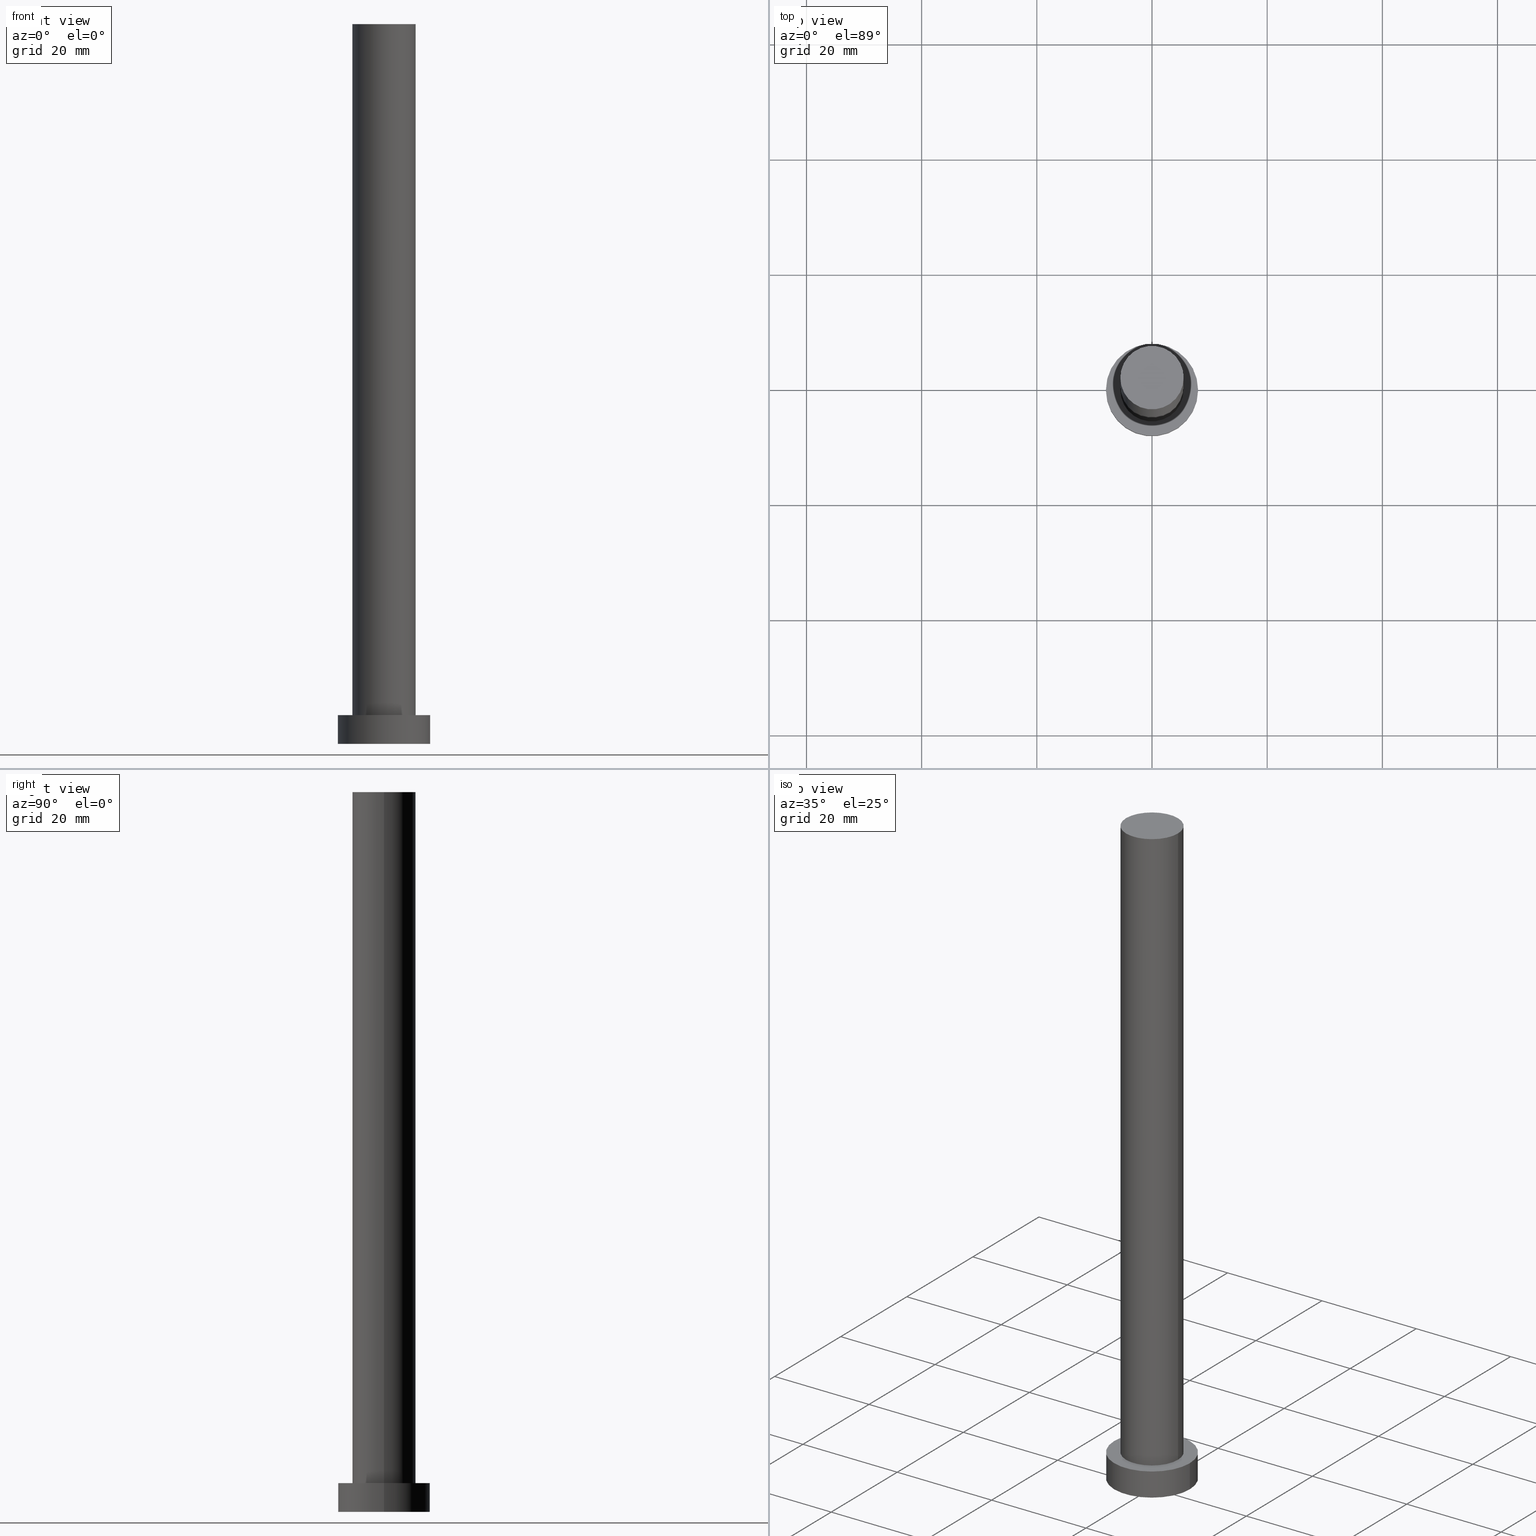
[diagram: canonical four-view strip — front | top / right | iso, engineering-drawing reading convention]
A machine part, canonical four-view strip (front | top / right | iso — engineering-drawing reading convention). The complete STEP part file that produces these views, byte-faithful:
ISO-10303-21;
HEADER;
FILE_DESCRIPTION (( 'STEP AP203' ),
    '1' );
FILE_NAME ('380d.STEP',
    '2023-02-12T10:57:51',
    ( '' ),
    ( '' ),
    'SwSTEP 2.0',
    'SolidWorks 2019',
    '' );
FILE_SCHEMA (( 'CONFIG_CONTROL_DESIGN' ));
ENDSEC;

DATA;
#1 = FACE_OUTER_BOUND ( 'NONE', #210, .T. ) ;
#2 = VECTOR ( 'NONE', #22, 1000.000000000000000 ) ;
#3 = APPROVAL_ROLE ( '' ) ;
#4 = EDGE_CURVE ( 'NONE', #249, #124, #133, .T. ) ;
#5 = ORIENTED_EDGE ( 'NONE', *, *, #173, .F. ) ;
#6 = FACE_OUTER_BOUND ( 'NONE', #243, .T. ) ;
#7 = EDGE_LOOP ( 'NONE', ( #220, #94 ) ) ;
#8 = PERSON_AND_ORGANIZATION_ROLE ( 'creator' ) ;
#9 = DIRECTION ( 'NONE',  ( 0.000000000000000000, 0.000000000000000000, 1.000000000000000000 ) ) ;
#10 = PERSON_AND_ORGANIZATION_ROLE ( 'design_supplier' ) ;
#11 = PRODUCT_RELATED_PRODUCT_CATEGORY ( 'detail', '', ( #241 ) ) ;
#12 = AXIS2_PLACEMENT_3D ( 'NONE', #216, #154, #39 ) ;
#13 = FACE_OUTER_BOUND ( 'NONE', #81, .T. ) ;
#14 = DIRECTION ( 'NONE',  ( -0.000000000000000000, -0.000000000000000000, -1.000000000000000000 ) ) ;
#15 = ORIENTED_EDGE ( 'NONE', *, *, #199, .F. ) ;
#16 = DATE_AND_TIME ( #33, #117 ) ;
#17 = DIRECTION ( 'NONE',  ( 0.000000000000000000, 0.000000000000000000, 1.000000000000000000 ) ) ;
#18 = CARTESIAN_POINT ( 'NONE',  ( 0.000000000000000000, 0.000000000000000000, 5.000000000000000000 ) ) ;
#19 = ORIENTED_EDGE ( 'NONE', *, *, #96, .F. ) ;
#20 =( NAMED_UNIT ( * ) PLANE_ANGLE_UNIT ( ) SI_UNIT ( $, .RADIAN. ) );
#21 =( GEOMETRIC_REPRESENTATION_CONTEXT ( 3 ) GLOBAL_UNCERTAINTY_ASSIGNED_CONTEXT ( ( #160 ) ) GLOBAL_UNIT_ASSIGNED_CONTEXT ( ( #89, #20, #179 ) ) REPRESENTATION_CONTEXT ( 'NONE', 'WORKASPACE' ) );
#22 = DIRECTION ( 'NONE',  ( -0.000000000000000000, -0.000000000000000000, -1.000000000000000000 ) ) ;
#23 = ORIENTED_EDGE ( 'NONE', *, *, #213, .F. ) ;
#24 = ORIENTED_EDGE ( 'NONE', *, *, #193, .F. ) ;
#25 = ADVANCED_FACE ( 'NONE', ( #51 ), #69, .T. ) ;
#26 = DIRECTION ( 'NONE',  ( 1.000000000000000000, 0.000000000000000000, 0.000000000000000000 ) ) ;
#27 = CIRCLE ( 'NONE', #231, 5.500000000000000000 ) ;
#28 = ADVANCED_FACE ( 'NONE', ( #13 ), #62, .T. ) ;
#29 = CARTESIAN_POINT ( 'NONE',  ( -8.000000000000000000, 0.000000000000000000, 5.000000000000000000 ) ) ;
#30 = DIRECTION ( 'NONE',  ( 0.000000000000000000, 0.000000000000000000, 1.000000000000000000 ) ) ;
#31 = APPROVAL_DATE_TIME ( #16, #224 ) ;
#32 = DIRECTION ( 'NONE',  ( 1.000000000000000000, 0.000000000000000000, 0.000000000000000000 ) ) ;
#33 = CALENDAR_DATE ( 2023, 12, 2 ) ;
#34 = AXIS2_PLACEMENT_3D ( 'NONE', #206, #30, #26 ) ;
#35 = ORGANIZATION ( 'NEUR�EN�', 'NEUR�EN�', '' ) ;
#36 = DIRECTION ( 'NONE',  ( -0.000000000000000000, -0.000000000000000000, -1.000000000000000000 ) ) ;
#37 = ADVANCED_FACE ( 'NONE', ( #6 ), #61, .F. ) ;
#38 = APPLICATION_CONTEXT ( 'configuration controlled 3d designs of mechanical parts and assemblies' ) ;
#39 = DIRECTION ( 'NONE',  ( 1.000000000000000000, 0.000000000000000000, -0.000000000000000000 ) ) ;
#40 = CC_DESIGN_PERSON_AND_ORGANIZATION_ASSIGNMENT ( #107, #164, ( #178 ) ) ;
#41 = AXIS2_PLACEMENT_3D ( 'NONE', #99, #58, #46 ) ;
#42 = APPLICATION_PROTOCOL_DEFINITION ( 'international standard', 'config_control_design', 1994, #38 ) ;
#43 = PLANE ( 'NONE',  #79 ) ;
#44 = PERSON ( 'NEUR�EN�', 'NEUR�EN�', 'NEUR�EN�', ('NEUR�EN�'), ('NEUR�EN�'), ('NEUR�EN�') ) ;
#45 = AXIS2_PLACEMENT_3D ( 'NONE', #152, #55, #63 ) ;
#46 = DIRECTION ( 'NONE',  ( -1.000000000000000000, 0.000000000000000000, 0.000000000000000000 ) ) ;
#47 = CC_DESIGN_PERSON_AND_ORGANIZATION_ASSIGNMENT ( #80, #8, ( #59 ) ) ;
#48 = CARTESIAN_POINT ( 'NONE',  ( 0.000000000000000000, 0.000000000000000000, 5.000000000000000000 ) ) ;
#49 = CARTESIAN_POINT ( 'NONE',  ( 0.000000000000000000, 0.000000000000000000, 125.0000000000000000 ) ) ;
#50 = CC_DESIGN_PERSON_AND_ORGANIZATION_ASSIGNMENT ( #246, #10, ( #165 ) ) ;
#51 = FACE_OUTER_BOUND ( 'NONE', #139, .T. ) ;
#52 = DATE_TIME_ROLE ( 'classification_date' ) ;
#53 = CARTESIAN_POINT ( 'NONE',  ( 8.000000000000000000, 9.797174393178825657E-16, 5.000000000000000000 ) ) ;
#54 = APPROVAL_PERSON_ORGANIZATION ( #228, #224, #188 ) ;
#55 = DIRECTION ( 'NONE',  ( 0.000000000000000000, 0.000000000000000000, 1.000000000000000000 ) ) ;
#56 = CC_DESIGN_DATE_AND_TIME_ASSIGNMENT ( #247, #140, ( #59 ) ) ;
#57 = DIRECTION ( 'NONE',  ( 0.000000000000000000, 0.000000000000000000, 1.000000000000000000 ) ) ;
#58 = DIRECTION ( 'NONE',  ( -0.000000000000000000, -0.000000000000000000, -1.000000000000000000 ) ) ;
#59 = PRODUCT_DEFINITION ( 'NEZN�M�', '', #165, #101 ) ;
#60 = APPROVAL_DATE_TIME ( #157, #191 ) ;
#61 = PLANE ( 'NONE',  #12 ) ;
#62 = CYLINDRICAL_SURFACE ( 'NONE', #196, 5.500000000000000000 ) ;
#63 = DIRECTION ( 'NONE',  ( 1.000000000000000000, 0.000000000000000000, 0.000000000000000000 ) ) ;
#64 = AXIS2_PLACEMENT_3D ( 'NONE', #74, #17, #234 ) ;
#65 = CIRCLE ( 'NONE', #219, 8.000000000000000000 ) ;
#66 = CARTESIAN_POINT ( 'NONE',  ( 8.000000000000000000, 9.797174393178825657E-16, 0.000000000000000000 ) ) ;
#67 = CALENDAR_DATE ( 2023, 12, 2 ) ;
#68 = CARTESIAN_POINT ( 'NONE',  ( 0.000000000000000000, 0.000000000000000000, 5.000000000000000000 ) ) ;
#69 = PLANE ( 'NONE',  #181 ) ;
#70 = ORIENTED_EDGE ( 'NONE', *, *, #166, .T. ) ;
#71 = EDGE_LOOP ( 'NONE', ( #174, #148 ) ) ;
#72 = CIRCLE ( 'NONE', #64, 8.000000000000000000 ) ;
#73 = SHAPE_DEFINITION_REPRESENTATION ( #202, #238 ) ;
#74 = CARTESIAN_POINT ( 'NONE',  ( 0.000000000000000000, 0.000000000000000000, 5.000000000000000000 ) ) ;
#75 = EDGE_CURVE ( 'NONE', #102, #187, #113, .T. ) ;
#76 = CC_DESIGN_APPROVAL ( #224, ( #165 ) ) ;
#77 = LINE ( 'NONE', #205, #2 ) ;
#78 = FACE_OUTER_BOUND ( 'NONE', #7, .T. ) ;
#79 = AXIS2_PLACEMENT_3D ( 'NONE', #237, #57, #95 ) ;
#80 = PERSON_AND_ORGANIZATION ( #44, #35 ) ;
#81 = EDGE_LOOP ( 'NONE', ( #227, #225, #70, #24 ) ) ;
#82 = COORDINATED_UNIVERSAL_TIME_OFFSET ( 1, 0, .AHEAD. ) ;
#83 = SECURITY_CLASSIFICATION_LEVEL ( 'unclassified' ) ;
#84 = APPROVAL_PERSON_ORGANIZATION ( #230, #143, #127 ) ;
#85 = CARTESIAN_POINT ( 'NONE',  ( 0.000000000000000000, 0.000000000000000000, 5.000000000000000000 ) ) ;
#86 = DATE_AND_TIME ( #67, #254 ) ;
#87 = PERSON_AND_ORGANIZATION_ROLE ( 'creator' ) ;
#88 = CC_DESIGN_PERSON_AND_ORGANIZATION_ASSIGNMENT ( #116, #100, ( #241 ) ) ;
#89 =( LENGTH_UNIT ( ) NAMED_UNIT ( * ) SI_UNIT ( .MILLI., .METRE. ) );
#90 = DIRECTION ( 'NONE',  ( 1.000000000000000000, 0.000000000000000000, 0.000000000000000000 ) ) ;
#91 = AXIS2_PLACEMENT_3D ( 'NONE', #175, #9, #132 ) ;
#92 = CC_DESIGN_PERSON_AND_ORGANIZATION_ASSIGNMENT ( #146, #87, ( #165 ) ) ;
#93 = CARTESIAN_POINT ( 'NONE',  ( -8.000000000000000000, 0.000000000000000000, 5.000000000000000000 ) ) ;
#94 = ORIENTED_EDGE ( 'NONE', *, *, #199, .T. ) ;
#95 = DIRECTION ( 'NONE',  ( 1.000000000000000000, 0.000000000000000000, -0.000000000000000000 ) ) ;
#96 = EDGE_CURVE ( 'NONE', #102, #97, #72, .T. ) ;
#97 = VERTEX_POINT ( 'NONE', #53 ) ;
#98 = PERSON_AND_ORGANIZATION ( #44, #35 ) ;
#99 = CARTESIAN_POINT ( 'NONE',  ( 0.000000000000000000, 0.000000000000000000, 125.0000000000000000 ) ) ;
#100 = PERSON_AND_ORGANIZATION_ROLE ( 'design_owner' ) ;
#101 = DESIGN_CONTEXT ( 'detailed design', #190, 'design' ) ;
#102 = VERTEX_POINT ( 'NONE', #29 ) ;
#103 = APPLICATION_PROTOCOL_DEFINITION ( 'international standard', 'config_control_design', 1994, #190 ) ;
#104 = DIRECTION ( 'NONE',  ( 0.000000000000000000, 0.000000000000000000, 1.000000000000000000 ) ) ;
#105 = EDGE_CURVE ( 'NONE', #124, #249, #151, .T. ) ;
#106 = ORIENTED_EDGE ( 'NONE', *, *, #173, .T. ) ;
#107 = PERSON_AND_ORGANIZATION ( #44, #35 ) ;
#108 = CC_DESIGN_APPROVAL ( #143, ( #178 ) ) ;
#109 = COORDINATED_UNIVERSAL_TIME_OFFSET ( 1, 0, .AHEAD. ) ;
#110 = CLOSED_SHELL ( 'NONE', ( #28, #251, #185, #236, #37, #204, #25 ) ) ;
#111 = AXIS2_PLACEMENT_3D ( 'NONE', #180, #131, #90 ) ;
#112 = VECTOR ( 'NONE', #36, 1000.000000000000000 ) ;
#113 = LINE ( 'NONE', #93, #235 ) ;
#114 = DIRECTION ( 'NONE',  ( 1.000000000000000000, 0.000000000000000000, 0.000000000000000000 ) ) ;
#115 = DIRECTION ( 'NONE',  ( 0.000000000000000000, 0.000000000000000000, 1.000000000000000000 ) ) ;
#116 = PERSON_AND_ORGANIZATION ( #44, #35 ) ;
#117 = LOCAL_TIME ( 11, 57, 51.00000000000000000, #212 ) ;
#118 = CC_DESIGN_APPROVAL ( #191, ( #59 ) ) ;
#119 = EDGE_LOOP ( 'NONE', ( #23, #144, #169, #156 ) ) ;
#120 = CARTESIAN_POINT ( 'NONE',  ( 0.000000000000000000, 0.000000000000000000, 125.0000000000000000 ) ) ;
#121 = VERTEX_POINT ( 'NONE', #218 ) ;
#122 = MANIFOLD_SOLID_BREP ( 'P�idat vysunut�m3', #110 ) ;
#123 = LINE ( 'NONE', #208, #135 ) ;
#124 = VERTEX_POINT ( 'NONE', #176 ) ;
#125 = DIRECTION ( 'NONE',  ( -1.000000000000000000, 0.000000000000000000, 0.000000000000000000 ) ) ;
#126 = CIRCLE ( 'NONE', #45, 8.000000000000000000 ) ;
#127 = APPROVAL_ROLE ( '' ) ;
#128 = CALENDAR_DATE ( 2023, 12, 2 ) ;
#129 = DIRECTION ( 'NONE',  ( -0.000000000000000000, -0.000000000000000000, -1.000000000000000000 ) ) ;
#130 = LOCAL_TIME ( 11, 57, 51.00000000000000000, #82 ) ;
#131 = DIRECTION ( 'NONE',  ( 0.000000000000000000, 0.000000000000000000, 1.000000000000000000 ) ) ;
#132 = DIRECTION ( 'NONE',  ( 1.000000000000000000, 0.000000000000000000, 0.000000000000000000 ) ) ;
#133 = CIRCLE ( 'NONE', #34, 5.500000000000000000 ) ;
#134 = CARTESIAN_POINT ( 'NONE',  ( 0.000000000000000000, 0.000000000000000000, 0.000000000000000000 ) ) ;
#135 = VECTOR ( 'NONE', #229, 1000.000000000000000 ) ;
#136 = CC_DESIGN_SECURITY_CLASSIFICATION ( #178, ( #165 ) ) ;
#137 = ORIENTED_EDGE ( 'NONE', *, *, #75, .F. ) ;
#138 = CARTESIAN_POINT ( 'NONE',  ( 0.000000000000000000, 0.000000000000000000, 5.000000000000000000 ) ) ;
#139 = EDGE_LOOP ( 'NONE', ( #242, #170 ) ) ;
#140 = DATE_TIME_ROLE ( 'creation_date' ) ;
#141 = AXIS2_PLACEMENT_3D ( 'NONE', #138, #142, #159 ) ;
#142 = DIRECTION ( 'NONE',  ( -0.000000000000000000, -0.000000000000000000, -1.000000000000000000 ) ) ;
#143 = APPROVAL ( #233, 'NEUR�EN�' ) ;
#144 = ORIENTED_EDGE ( 'NONE', *, *, #4, .F. ) ;
#145 = CYLINDRICAL_SURFACE ( 'NONE', #149, 8.000000000000000000 ) ;
#146 = PERSON_AND_ORGANIZATION ( #44, #35 ) ;
#147 = EDGE_LOOP ( 'NONE', ( #5, #19, #232, #171 ) ) ;
#148 = ORIENTED_EDGE ( 'NONE', *, *, #166, .F. ) ;
#149 = AXIS2_PLACEMENT_3D ( 'NONE', #48, #14, #125 ) ;
#150 = APPROVAL_DATE_TIME ( #215, #143 ) ;
#151 = CIRCLE ( 'NONE', #91, 5.500000000000000000 ) ;
#152 = CARTESIAN_POINT ( 'NONE',  ( 0.000000000000000000, 0.000000000000000000, 0.000000000000000000 ) ) ;
#153 = EDGE_CURVE ( 'NONE', #187, #161, #126, .T. ) ;
#154 = DIRECTION ( 'NONE',  ( 0.000000000000000000, 0.000000000000000000, 1.000000000000000000 ) ) ;
#155 = CIRCLE ( 'NONE', #194, 8.000000000000000000 ) ;
#156 = ORIENTED_EDGE ( 'NONE', *, *, #183, .T. ) ;
#157 = DATE_AND_TIME ( #186, #248 ) ;
#158 = ORIENTED_EDGE ( 'NONE', *, *, #244, .T. ) ;
#159 = DIRECTION ( 'NONE',  ( -1.000000000000000000, 0.000000000000000000, 0.000000000000000000 ) ) ;
#160 = UNCERTAINTY_MEASURE_WITH_UNIT (LENGTH_MEASURE( 1.000000000000000082E-05 ), #89, 'distance_accuracy_value', 'NONE');
#161 = VERTEX_POINT ( 'NONE', #66 ) ;
#162 = CALENDAR_DATE ( 2023, 12, 2 ) ;
#163 = FACE_OUTER_BOUND ( 'NONE', #147, .T. ) ;
#164 = PERSON_AND_ORGANIZATION_ROLE ( 'classification_officer' ) ;
#165 = PRODUCT_DEFINITION_FORMATION_WITH_SPECIFIED_SOURCE ( 'LIBOVOLN�', '', #241, .NOT_KNOWN. ) ;
#166 = EDGE_CURVE ( 'NONE', #252, #121, #27, .T. ) ;
#167 = DIRECTION ( 'NONE',  ( -1.000000000000000000, 0.000000000000000000, 0.000000000000000000 ) ) ;
#168 = DIRECTION ( 'NONE',  ( 0.000000000000000000, 0.000000000000000000, 1.000000000000000000 ) ) ;
#169 = ORIENTED_EDGE ( 'NONE', *, *, #193, .T. ) ;
#170 = ORIENTED_EDGE ( 'NONE', *, *, #105, .T. ) ;
#171 = ORIENTED_EDGE ( 'NONE', *, *, #153, .T. ) ;
#172 = CIRCLE ( 'NONE', #217, 5.500000000000000000 ) ;
#173 = EDGE_CURVE ( 'NONE', #97, #161, #189, .T. ) ;
#174 = ORIENTED_EDGE ( 'NONE', *, *, #183, .F. ) ;
#175 = CARTESIAN_POINT ( 'NONE',  ( 0.000000000000000000, 0.000000000000000000, 125.0000000000000000 ) ) ;
#176 = CARTESIAN_POINT ( 'NONE',  ( 5.500000000000000000, 6.735557395310442023E-16, 125.0000000000000000 ) ) ;
#177 = FACE_BOUND ( 'NONE', #71, .T. ) ;
#178 = SECURITY_CLASSIFICATION ( '', '', #83 ) ;
#179 =( NAMED_UNIT ( * ) SI_UNIT ( $, .STERADIAN. ) SOLID_ANGLE_UNIT ( ) );
#180 = CARTESIAN_POINT ( 'NONE',  ( 0.000000000000000000, 0.000000000000000000, 0.000000000000000000 ) ) ;
#181 = AXIS2_PLACEMENT_3D ( 'NONE', #49, #223, #221 ) ;
#182 = APPROVAL_PERSON_ORGANIZATION ( #98, #191, #3 ) ;
#183 = EDGE_CURVE ( 'NONE', #121, #252, #172, .T. ) ;
#184 = COORDINATED_UNIVERSAL_TIME_OFFSET ( 1, 0, .AHEAD. ) ;
#185 = ADVANCED_FACE ( 'NONE', ( #163 ), #145, .T. ) ;
#186 = CALENDAR_DATE ( 2023, 12, 2 ) ;
#187 = VERTEX_POINT ( 'NONE', #192 ) ;
#188 = APPROVAL_ROLE ( '' ) ;
#189 = LINE ( 'NONE', #253, #112 ) ;
#190 = APPLICATION_CONTEXT ( 'configuration controlled 3d designs of mechanical parts and assemblies' ) ;
#191 = APPROVAL ( #203, 'NEUR�EN�' ) ;
#192 = CARTESIAN_POINT ( 'NONE',  ( -8.000000000000000000, 0.000000000000000000, 0.000000000000000000 ) ) ;
#193 = EDGE_CURVE ( 'NONE', #249, #121, #123, .T. ) ;
#194 = AXIS2_PLACEMENT_3D ( 'NONE', #85, #168, #201 ) ;
#195 = MECHANICAL_CONTEXT ( 'NONE', #38, 'mechanical' ) ;
#196 = AXIS2_PLACEMENT_3D ( 'NONE', #120, #207, #167 ) ;
#197 = CYLINDRICAL_SURFACE ( 'NONE', #41, 5.500000000000000000 ) ;
#198 = FACE_OUTER_BOUND ( 'NONE', #119, .T. ) ;
#199 = EDGE_CURVE ( 'NONE', #97, #102, #155, .T. ) ;
#200 = CARTESIAN_POINT ( 'NONE',  ( -5.500000000000000000, 0.000000000000000000, 125.0000000000000000 ) ) ;
#201 = DIRECTION ( 'NONE',  ( 1.000000000000000000, 0.000000000000000000, 0.000000000000000000 ) ) ;
#202 = PRODUCT_DEFINITION_SHAPE ( 'NONE', 'NONE',  #59 ) ;
#203 = APPROVAL_STATUS ( 'not_yet_approved' ) ;
#204 = ADVANCED_FACE ( 'NONE', ( #198 ), #197, .T. ) ;
#205 = CARTESIAN_POINT ( 'NONE',  ( 5.500000000000000000, 6.735557395310442023E-16, 125.0000000000000000 ) ) ;
#206 = CARTESIAN_POINT ( 'NONE',  ( 0.000000000000000000, 0.000000000000000000, 125.0000000000000000 ) ) ;
#207 = DIRECTION ( 'NONE',  ( -0.000000000000000000, -0.000000000000000000, -1.000000000000000000 ) ) ;
#208 = CARTESIAN_POINT ( 'NONE',  ( -5.500000000000000000, 0.000000000000000000, 125.0000000000000000 ) ) ;
#209 = CARTESIAN_POINT ( 'NONE',  ( 5.500000000000000000, 6.735557395310442023E-16, 5.000000000000000000 ) ) ;
#210 = EDGE_LOOP ( 'NONE', ( #15, #106, #158, #137 ) ) ;
#211 = ORIENTED_EDGE ( 'NONE', *, *, #153, .F. ) ;
#212 = COORDINATED_UNIVERSAL_TIME_OFFSET ( 1, 0, .AHEAD. ) ;
#213 = EDGE_CURVE ( 'NONE', #124, #252, #77, .T. ) ;
#214 = ORIENTED_EDGE ( 'NONE', *, *, #244, .F. ) ;
#215 = DATE_AND_TIME ( #128, #222 ) ;
#216 = CARTESIAN_POINT ( 'NONE',  ( 0.000000000000000000, 0.000000000000000000, 0.000000000000000000 ) ) ;
#217 = AXIS2_PLACEMENT_3D ( 'NONE', #18, #245, #226 ) ;
#218 = CARTESIAN_POINT ( 'NONE',  ( -5.500000000000000000, 0.000000000000000000, 5.000000000000000000 ) ) ;
#219 = AXIS2_PLACEMENT_3D ( 'NONE', #134, #115, #114 ) ;
#220 = ORIENTED_EDGE ( 'NONE', *, *, #96, .T. ) ;
#221 = DIRECTION ( 'NONE',  ( 1.000000000000000000, 0.000000000000000000, -0.000000000000000000 ) ) ;
#222 = LOCAL_TIME ( 11, 57, 51.00000000000000000, #109 ) ;
#223 = DIRECTION ( 'NONE',  ( 0.000000000000000000, 0.000000000000000000, 1.000000000000000000 ) ) ;
#224 = APPROVAL ( #240, 'NEUR�EN�' ) ;
#225 = ORIENTED_EDGE ( 'NONE', *, *, #213, .T. ) ;
#226 = DIRECTION ( 'NONE',  ( 1.000000000000000000, 0.000000000000000000, 0.000000000000000000 ) ) ;
#227 = ORIENTED_EDGE ( 'NONE', *, *, #105, .F. ) ;
#228 = PERSON_AND_ORGANIZATION ( #44, #35 ) ;
#229 = DIRECTION ( 'NONE',  ( -0.000000000000000000, -0.000000000000000000, -1.000000000000000000 ) ) ;
#230 = PERSON_AND_ORGANIZATION ( #44, #35 ) ;
#231 = AXIS2_PLACEMENT_3D ( 'NONE', #68, #104, #32 ) ;
#232 = ORIENTED_EDGE ( 'NONE', *, *, #75, .T. ) ;
#233 = APPROVAL_STATUS ( 'not_yet_approved' ) ;
#234 = DIRECTION ( 'NONE',  ( 1.000000000000000000, 0.000000000000000000, 0.000000000000000000 ) ) ;
#235 = VECTOR ( 'NONE', #129, 1000.000000000000000 ) ;
#236 = ADVANCED_FACE ( 'NONE', ( #177, #78 ), #43, .T. ) ;
#237 = CARTESIAN_POINT ( 'NONE',  ( 0.000000000000000000, 0.000000000000000000, 5.000000000000000000 ) ) ;
#238 = ADVANCED_BREP_SHAPE_REPRESENTATION ( '380d', ( #122, #111 ), #21 ) ;
#239 = CYLINDRICAL_SURFACE ( 'NONE', #141, 8.000000000000000000 ) ;
#240 = APPROVAL_STATUS ( 'not_yet_approved' ) ;
#241 = PRODUCT ( '380d', '380d', '', ( #195 ) ) ;
#242 = ORIENTED_EDGE ( 'NONE', *, *, #4, .T. ) ;
#243 = EDGE_LOOP ( 'NONE', ( #211, #214 ) ) ;
#244 = EDGE_CURVE ( 'NONE', #161, #187, #65, .T. ) ;
#245 = DIRECTION ( 'NONE',  ( 0.000000000000000000, 0.000000000000000000, 1.000000000000000000 ) ) ;
#246 = PERSON_AND_ORGANIZATION ( #44, #35 ) ;
#247 = DATE_AND_TIME ( #162, #130 ) ;
#248 = LOCAL_TIME ( 11, 57, 51.00000000000000000, #184 ) ;
#249 = VERTEX_POINT ( 'NONE', #200 ) ;
#250 = COORDINATED_UNIVERSAL_TIME_OFFSET ( 1, 0, .AHEAD. ) ;
#251 = ADVANCED_FACE ( 'NONE', ( #1 ), #239, .T. ) ;
#252 = VERTEX_POINT ( 'NONE', #209 ) ;
#253 = CARTESIAN_POINT ( 'NONE',  ( 8.000000000000000000, 9.797174393178825657E-16, 5.000000000000000000 ) ) ;
#254 = LOCAL_TIME ( 11, 57, 51.00000000000000000, #250 ) ;
#255 = CC_DESIGN_DATE_AND_TIME_ASSIGNMENT ( #86, #52, ( #178 ) ) ;
ENDSEC;
END-ISO-10303-21;
